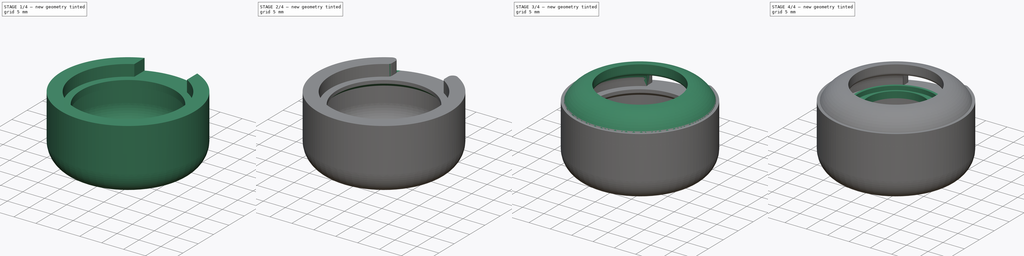
[diagram: build sequence overview — one tinted view per stage of 4, left to right]
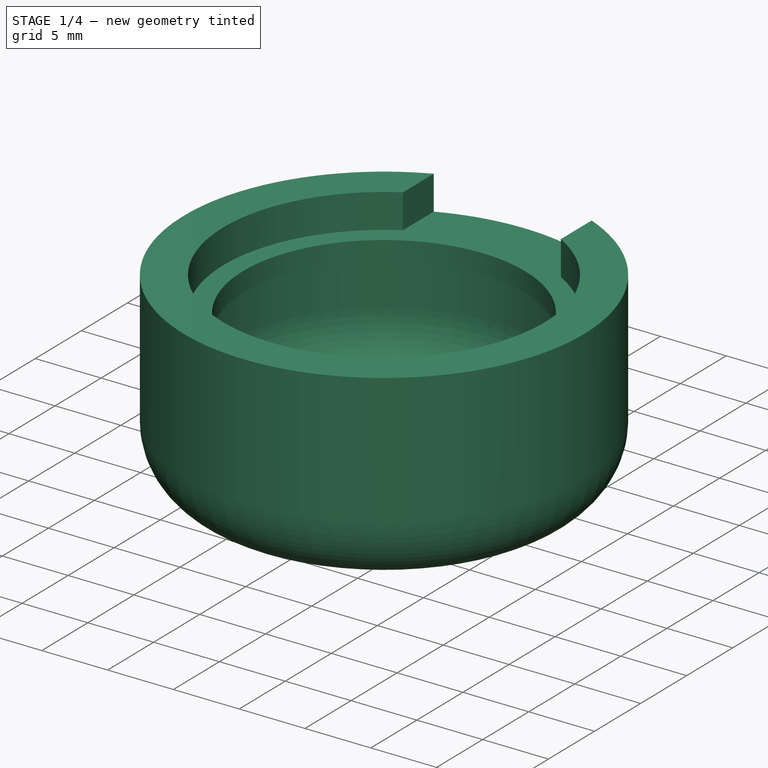
[diagram: stage 1 of 4 — iso view after this stage's code; geometry added in this stage tinted green]
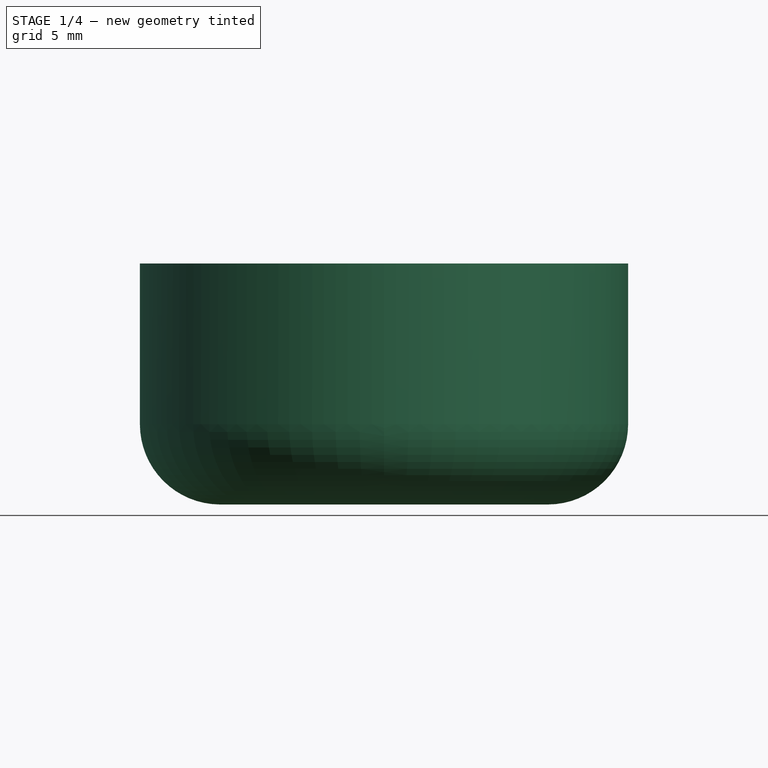
[diagram: stage 1 of 4 — front view after this stage's code; geometry added in this stage tinted green]
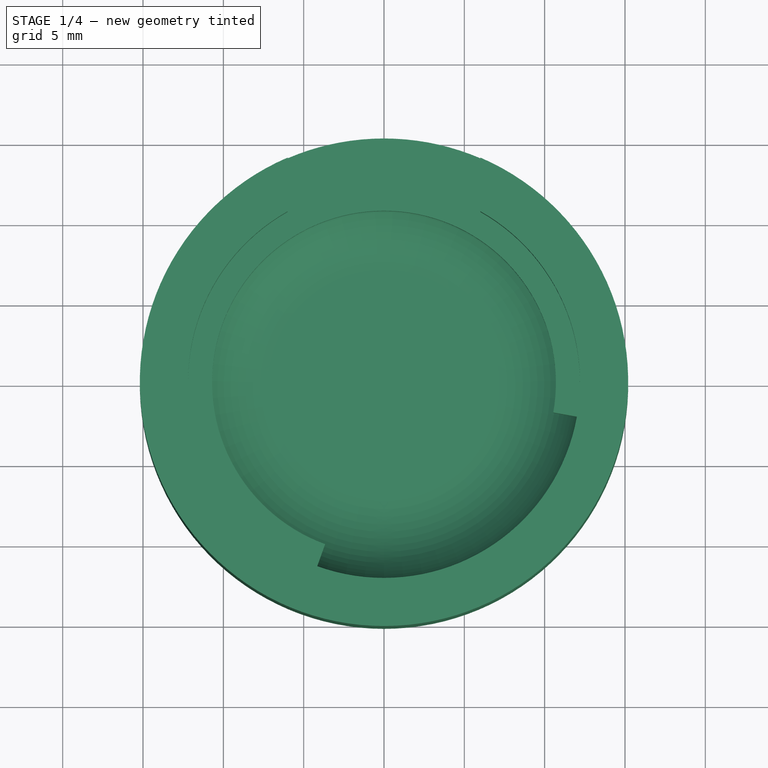
[diagram: stage 1 of 4 — top view after this stage's code; geometry added in this stage tinted green]
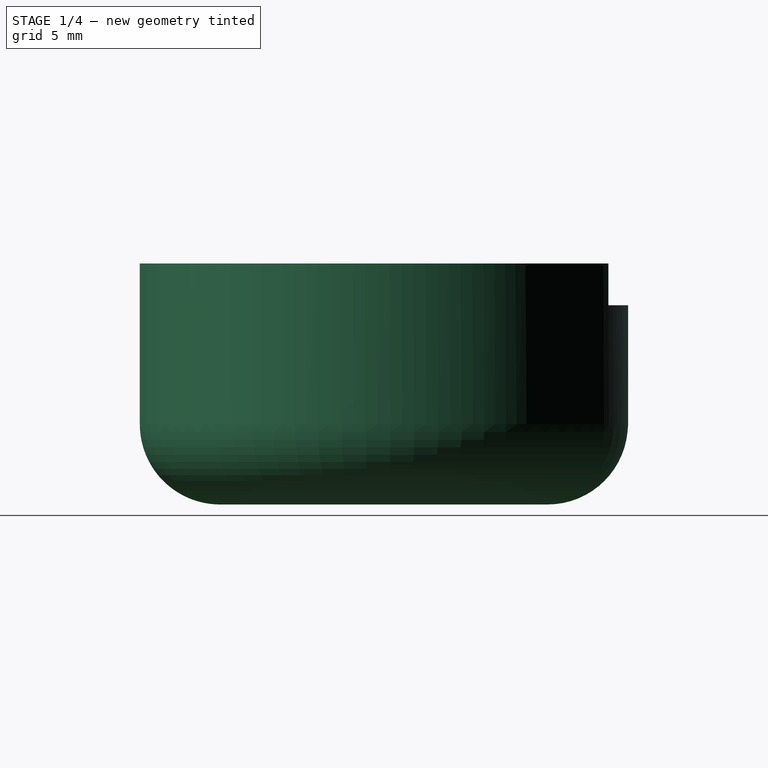
[diagram: stage 1 of 4 — right view after this stage's code; geometry added in this stage tinted green]
FCSTD DOCUMENT  (FreeCAD 0.19R22284 (Git))
Label: led-pedestal-case
License: All rights reserved
LicenseURL: http://en.wikipedia.org/wiki/All_rights_reserved
objects: Part::Feature×52, App::Part×52, Sketcher::SketchObject×12, PartDesign::Pocket×6, PartDesign::Body×3, PartDesign::Revolution×2, PartDesign::Chamfer×2, PartDesign::Plane×1, PartDesign::Fillet×1, PartDesign::ShapeBinder×1, PartDesign::Pad×1
note: 93 computed .brp shape members not serialized (recipe doc carries the construction recipe); baked Part::Feature solids carry a one-line shape summary decoded from their .brp

FEATURE [Part::Feature] Part__Feature  label="SOLID"
  shape: bbox 3.621 x 3.9 x 0.95 mm, 109 faces (baked)
FEATURE [App::Part] TSOT_23_5  label="TSOT-23-5"
  Group = -> [Part__Feature]
  Origin = -> Origin
  Placement = pos=(-4.826,4.064,1.65) rot=(0,0,1;0rad)
FEATURE [Part::Feature] Part__Feature001  label="SOLID001"
  shape: bbox 4.6 x 3.2 x 2.5 mm, 75 faces (baked)
FEATURE [App::Part] SKRPACE010
  Group = -> [Part__Feature001]
  Origin = -> Origin001
  Placement = pos=(-0.0254,-9.2456,1.65) rot=(0,0,1;3.14159rad)
FEATURE [Part::Feature] Part__Feature002  label="SOLID002"
  shape: bbox 3.494 x 3.773 x 1.55 mm, 124 faces (baked)
FEATURE [App::Part] SOT_23_6  label="SOT-23-6"
  Group = -> [Part__Feature002]
  Origin = -> Origin002
  Placement = pos=(-8.8646,-1.6764,1.65) rot=(0,0,1;3.14159rad)
FEATURE [Part::Feature] Part__Feature003  label="SOLID003"
  shape: bbox 2 x 1.2 x 0.45 mm, 26 faces (baked)
FEATURE [App::Part] R_0805_2012Metric
  Group = -> [Part__Feature003]
  Origin = -> Origin003
  Placement = pos=(7.5946,-7.62,1.65) rot=(0,0,1;3.92699rad)
FEATURE [Part::Feature] Part__Feature004  label="SOLID004"
  shape: bbox 2 x 1.25 x 1.25 mm, 28 faces (baked)
FEATURE [App::Part] C_0805_2012Metric
  Group = -> [Part__Feature004]
  Origin = -> Origin004
  Placement = pos=(4.191,-8.8646,1.65) rot=(0,0,1;1.5708rad)
FEATURE [Part::Feature] Part__Feature005  label="SOLID005"
  shape: bbox 2 x 1.25 x 1.25 mm, 28 faces (baked)
FEATURE [App::Part] C_0805_2012Metric001
  Group = -> [Part__Feature005]
  Origin = -> Origin005
  Placement = pos=(-4.4846,1.143,1.65) rot=(0,0,1;0rad)
FEATURE [Part::Feature] Part__Feature006  label="SOLID006"
  shape: bbox 2 x 1.2 x 0.45 mm, 26 faces (baked)
FEATURE [App::Part] R_0805_2012Metric001
  Group = -> [Part__Feature006]
  Origin = -> Origin006
  Placement = pos=(-3.8354,-5.334,1.65) rot=(0,0,1;0rad)
FEATURE [Part::Feature] Part__Feature007  label="SOLID007"
  shape: bbox 3.8 x 3.517 x 1.25 mm, 67 faces (baked)
FEATURE [App::Part] D_SOD_123  label="D_SOD-123"
  Group = -> [Part__Feature007]
  Origin = -> Origin007
  Placement = pos=(0.127,4.064,1.65) rot=(0,0,1;0rad)
FEATURE [Part::Feature] Part__Feature008  label="SOLID008"
  shape: bbox 3.18 x 3.679 x 1.2 mm, 76 faces (baked)
FEATURE [App::Part] SOT_23  label="SOT-23"
  Group = -> [Part__Feature008]
  Origin = -> Origin008
  Placement = pos=(6.604,6.604,1.65) rot=(0,0,1;0rad)
FEATURE [Part::Feature] Part__Feature009  label="SOLID009"
  shape: bbox 2 x 1.2 x 0.45 mm, 26 faces (baked)
FEATURE [App::Part] R_0805_2012Metric002
  Group = -> [Part__Feature009]
  Origin = -> Origin009
  Placement = pos=(-4.445,-1.016,1.65) rot=(0,0,1;0rad)
FEATURE [Part::Feature] Part__Feature010  label="SOLID010"
  shape: bbox 3.18 x 3.679 x 1.2 mm, 76 faces (baked)
FEATURE [App::Part] SOT_23001  label="SOT-024"
  Group = -> [Part__Feature010]
  Origin = -> Origin010
  Placement = pos=(-8.89,3.9624,1.65) rot=(0,0,1;0rad)
FEATURE [Part::Feature] Part__Feature011  label="SOLID011"
  shape: bbox 2 x 1.2 x 0.45 mm, 26 faces (baked)
FEATURE [App::Part] R_0805_2012Metric003
  Group = -> [Part__Feature011]
  Origin = -> Origin011
  Placement = pos=(-4.445,-3.302,1.65) rot=(0,0,1;3.14159rad)
FEATURE [Part::Feature] Part__Feature012  label="SOLID012"
  shape: bbox 2 x 1.2 x 0.45 mm, 26 faces (baked)
FEATURE [App::Part] R_0805_2012Metric004
  Group = -> [Part__Feature012]
  Origin = -> Origin012
  Placement = pos=(-5.842,7.816,1.65) rot=(0,0,1;1.5708rad)
FEATURE [Part::Feature] Part__Feature013  label="SOLID013"
  shape: bbox 6.57 x 6.453 x 1.1 mm, 156 faces (baked)
FEATURE [App::Part] TSSOP_8_4_4x3mm_P0_65mm  label="TSSOP-8_4.4x3mm_P0.65mm"
  Group = -> [Part__Feature013]
  Origin = -> Origin013
  Placement = pos=(6.604,-3.048,1.65) rot=(0,0,1;0rad)
FEATURE [Part::Feature] Part__Feature014  label="SOLID014"
  shape: bbox 2 x 1.2 x 0.45 mm, 26 faces (baked)
FEATURE [App::Part] R_0805_2012Metric005
  Group = -> [Part__Feature014]
  Origin = -> Origin014
  Placement = pos=(9.525,0.762,1.65) rot=(0,0,1;1.5708rad)
FEATURE [Part::Feature] Part__Feature015  label="SOLID015"
  shape: bbox 2 x 1.25 x 1.25 mm, 28 faces (baked)
FEATURE [App::Part] C_0805_2012Metric002
  Group = -> [Part__Feature015]
  Origin = -> Origin015
  Placement = pos=(8.6106,3.81,1.65) rot=(0,0,1;3.14159rad)
FEATURE [Part::Feature] Part__Feature016  label="SOLID016"
  shape: bbox 7.977 x 5.418 x 2.937 mm, 484 faces (baked)
FEATURE [App::Part] USB_Micro_B_Molex_47346_0001  label="USB_Micro-B_Molex_47346-0001"
  Group = -> [Part__Feature016]
  Origin = -> Origin016
  Placement = pos=(0,8.572,1.65) rot=(0,0,1;3.14159rad)
FEATURE [Part::Feature] Part__Feature017  label="SOLID017"
  shape: bbox 2 x 1.25 x 1.25 mm, 28 faces (baked)
FEATURE [App::Part] C_0805_2012Metric003
  Group = -> [Part__Feature017]
  Origin = -> Origin017
  Placement = pos=(4.7498,3.81,1.65) rot=(0,0,1;0rad)
FEATURE [Part::Feature] Part__Feature018  label="SOLID018"
  shape: bbox 3.494 x 3.773 x 1.55 mm, 124 faces (baked)
FEATURE [App::Part] SOT_23_6001  label="SOT-23-007"
  Group = -> [Part__Feature018]
  Origin = -> Origin018
  Placement = pos=(6.604,0.762,1.65) rot=(0,0,1;1.5708rad)
FEATURE [Part::Feature] Part__Feature019  label="SOLID019"
  shape: bbox 2 x 1.2 x 0.45 mm, 26 faces (baked)
FEATURE [App::Part] R_0805_2012Metric006
  Group = -> [Part__Feature019]
  Origin = -> Origin019
  Placement = pos=(0,-3.302,1.65) rot=(0,0,1;0rad)
FEATURE [Part::Feature] Part__Feature020  label="SOLID020"
  shape: bbox 2 x 1.2 x 0.45 mm, 26 faces (baked)
FEATURE [App::Part] R_0805_2012Metric007
  Group = -> [Part__Feature020]
  Origin = -> Origin020
  Placement = pos=(3.683,0.762,1.65) rot=(0,0,1;1.5708rad)
FEATURE [Part::Feature] Part__Feature021  label="SOLID021"
  shape: bbox 2 x 1.25 x 1.25 mm, 28 faces (baked)
FEATURE [App::Part] C_0805_2012Metric004
  Group = -> [Part__Feature021]
  Origin = -> Origin021
  Placement = pos=(0,-5.334,1.65) rot=(0,0,1;0rad)
FEATURE [Part::Feature] Part__Feature022  label="SOLID022"
  shape: bbox 4.9 x 11.08 x 9.8 mm, 16 faces (baked)
FEATURE [App::Part] LED_D3_0mm_FlatTop  label="LED_D3.0mm_FlatTop"
  Group = -> [Part__Feature022]
  Origin = -> Origin022
  Placement = pos=(1.27,-0.001,1.65) rot=(0,0,1;3.14159rad)
FEATURE [Part::Feature] Part__Feature023  label="SOLID023"
  shape: bbox 2 x 1.25 x 1.25 mm, 28 faces (baked)
FEATURE [App::Part] C_0805_2012Metric005
  Group = -> [Part__Feature023]
  Origin = -> Origin023
  Placement = pos=(-8.89,1.1684,1.65) rot=(0,0,1;0rad)
FEATURE [Part::Feature] Part__Feature024  label="SOLID024"
  shape: bbox 5.9 x 4.55 x 9.4 mm, 93 faces (baked)
FEATURE [App::Part] JST_PH_B2B_PH_K_1x02_P2_00mm_Vertical  label="JST_PH_B2B-PH-K_1x02_P2.00mm_Vertical"
  Group = -> [Part__Feature024]
  Origin = -> Origin024
  Placement = pos=(4.445,-5.592,-0.05) rot=(1,0,0;3.14159rad)
FEATURE [Part::Feature] Part__Feature025  label="COMPOUND"
  shape: bbox 24 x 24 x 1.6 mm, 12 faces (baked)
FEATURE [App::Part] Open_CASCADE_STEP_translator_7_4_1  label="LED Pedestal Rev1"
  Group = -> [TSOT_23_5,SKRPACE010,SOT_23_6,R_0805_2012Metric,C_0805_2012Metric,C_0805_2012Metric001,R_0805_2012Metric001,D_SOD_123,SOT_23,R_0805_2012Metric002,SOT_23001,R_0805_2012Metric003,R_0805_2012Metric004,TSSOP_8_4_4x3mm_P0_65mm,R_0805_2012Metric005,C_0805_2012Metric002,USB_Micro_B_Molex_47346_0001,C_0805_2012Metric003,SOT_23_6001,R_0805_2012Metric006,R_0805_2012Metric007,C_0805_2012Metric004,+4 more]
  Origin = -> Origin025
FEATURE [Sketcher::SketchObject] Sketch
  MapMode = 5
  Placement = pos=(0,0,0) rot=(0.57735,0.57735,0.57735;2.0944rad)
  Support = -> [YZ_Plane027]
  sketch-geometry (12):
    g0: LineSegment StartX=-12.2 StartY=2.6 StartZ=0 EndX=-15.2 EndY=2.6 EndZ=0
    g1: LineSegment StartX=-10.7 StartY=0 StartZ=0 EndX=-12.2 EndY=0 EndZ=0
    g2: LineSegment StartX=-10.2 StartY=-12.4 StartZ=0 EndX=0 EndY=-12.4 EndZ=0
    g3: LineSegment StartX=0 StartY=-12.4 StartZ=0 EndX=0 EndY=-10.4 EndZ=0
    g4: LineSegment StartX=0 StartY=-10.4 StartZ=0 EndX=-7.2 EndY=-10.4 EndZ=0
    g5: LineSegment StartX=-12.2 StartY=2.6 StartZ=0 EndX=-12.2 EndY=0 EndZ=0
    g6: LineSegment StartX=-10.7 StartY=-1.5 StartZ=0 EndX=-12.2 EndY=-1.5 EndZ=0
    g7: LineSegment StartX=-10.7 StartY=0 StartZ=0 EndX=-10.7 EndY=-1.5 EndZ=0
    g8: LineSegment StartX=-12.2 StartY=-1.5 StartZ=0 EndX=-12.2 EndY=-5.4 EndZ=0
    g9: LineSegment StartX=-15.2 StartY=2.6 StartZ=0 EndX=-15.2 EndY=-7.4 EndZ=0
    g10: ArcOfCircle CenterX=-10.2 CenterY=-7.4 CenterZ=0 NormalX=0 NormalY=0 NormalZ=1 AngleXU=0 Radius=5 StartAngle=3.14159 EndAngle=4.71239
    g11: ArcOfCircle CenterX=-7.2 CenterY=-5.4 CenterZ=0 NormalX=0 NormalY=0 NormalZ=1 AngleXU=0 Radius=5 StartAngle=3.14159 EndAngle=4.71239
  constraints (34):
    c: Horizontal(g0)
    c: DistanceX(g0,g0) = 3
    c: DistanceY(g1,g0) = 2.6
    c: PointOnObject(g2,g-2)
    c: Horizontal(g2)
    c: Coincident(g2,g3)
    c: PointOnObject(g3,g-2)
    c: Coincident(g3,g4)
    c: Horizontal(g4)
    c: DistanceY(g2,g3) = 2
    c: DistanceY(g2,g0) = 15
    c: Horizontal(g1)
    c: Coincident(g5,g0)
    c: Coincident(g5,g1)
    c: Vertical(g5)
    c: PointOnObject(g1,g-1)
    c: Distance(g-1,g5) = 12.2
    c: Horizontal(g6)
    c: Coincident(g7,g1)
    c: Coincident(g7,g6)
    c: Vertical(g7)
    c: Coincident(g8,g6)
    c: Vertical(g8)
    c: DistanceY(g6,g1) = 1.5
    c: DistanceX(g6,g6) = 1.5
    c: Coincident(g9,g0)
    c: Vertical(g9)
    c: Tangent(g10,g9) = -1.5708
    c: Tangent(g10,g2) = -1.5708
    c: Radius(g10) = 5
    c: Equal(g1,g6)
    c: Tangent(g11,g8) = -1.5708
    c: Tangent(g11,g4) = 1.5708
    c: Equal(g11,g10)
FEATURE [PartDesign::Revolution] Revolution
  Angle = 360
  Axis = (-2e-16,3e-16,1)
  Base = (0,0,0)
  Placement = pos=(0,0,0) rot=(0.57735,0.57735,0.57735;2.0944rad)
  Profile = -> Sketch
  ReferenceAxis = -> Sketch [V_Axis]
FEATURE [Sketcher::SketchObject] Sketch001
  MapMode = 5
  Support = -> [XY_Plane027]
  sketch-geometry (2):
    g0: GeomPoint X=0 Y=15.2 Z=0
    g1: LineSegment StartX=0 StartY=0 StartZ=0 EndX=0 EndY=15.2 EndZ=0
  constraints (4):
    c: PointOnObject(g0,g-2)
    c: Coincident(g1,g-1)
    c: Coincident(g1,g0)
    c: DistanceY(g1,g0) = 15.2
FEATURE [PartDesign::Plane] DatumPlane
  Length = 60
  MapMode = 1
  Placement = pos=(0,15.2,0) rot=(1,0,0;1.5708rad)
  ResizeMode = 0
  Support = -> [Sketch001]
  Width = 60
FEATURE [Sketcher::SketchObject] Sketch002
  MapMode = 5
  Placement = pos=(0,15.2,0) rot=(0,0.707107,0.707107;3.14159rad)
  Support = -> [DatumPlane]
  sketch-geometry (4):
    g0: LineSegment StartX=6 StartY=0 StartZ=0 EndX=-6 EndY=0 EndZ=0
    g1: LineSegment StartX=-6 StartY=0 StartZ=0 EndX=-6 EndY=2.6 EndZ=0
    g2: LineSegment StartX=-6 StartY=2.6 StartZ=0 EndX=6 EndY=2.6 EndZ=0
    g3: LineSegment StartX=6 StartY=2.6 StartZ=0 EndX=6 EndY=0 EndZ=0
  constraints (11):
    c: Coincident(g0,g1)
    c: Coincident(g1,g2)
    c: Coincident(g2,g3)
    c: Coincident(g3,g0)
    c: Horizontal(g2)
    c: Vertical(g1)
    c: Vertical(g3)
    c: DistanceX(g0,g0) = 12
    c: Symmetric(g0,g0,g-2)
    c: PointOnObject(g-1,g0)
    c: Distance(g3) = 2.6
FEATURE [PartDesign::Pocket] Pocket
  BaseFeature = -> Revolution
  Length = 7
  Length2 = 100
  Placement = pos=(0,0,0) rot=(0.57735,0.57735,0.57735;2.0944rad)
  Profile = -> Sketch002
  Type = 0
FEATURE [Sketcher::SketchObject] Sketch003
  ExternalGeometry = -> [Revolution]
  MapMode = 5
  Support = -> [XY_Plane027]
  sketch-geometry (6):
    g0: ArcOfCircle CenterX=0 CenterY=0 CenterZ=0 NormalX=0 NormalY=0 NormalZ=1 AngleXU=0 Radius=12.2 StartAngle=4.36332 EndAngle=6.10865
    g1: LineSegment [constr] StartX=0 StartY=0 StartZ=0 EndX=-4.17265 EndY=-11.4642 EndZ=0
    g2: LineSegment [constr] StartX=0 StartY=0 StartZ=0 EndX=12.0147 EndY=-2.11851 EndZ=0
    g3: ArcOfCircle CenterX=0 CenterY=0 CenterZ=0 NormalX=0 NormalY=0 NormalZ=1 AngleXU=0 Radius=10.7 StartAngle=4.36332 EndAngle=6.10865
    g4: LineSegment StartX=12.0147 StartY=-2.11851 StartZ=0 EndX=10.5374 EndY=-1.85804 EndZ=0
    g5: LineSegment StartX=-4.17265 StartY=-11.4642 StartZ=0 EndX=-3.65962 EndY=-10.0547 EndZ=0
  constraints (14):
    c: Coincident(g0,g-1)
    c: Coincident(g1,g0)
    c: Coincident(g1,g0)
    c: Coincident(g2,g0)
    c: Coincident(g2,g0)
    c: Angle(g-2,g1) = 2.79253
    c: Angle(g2,g-2) = 1.74533
    c: Coincident(g3,g0)
    c: Coincident(g4,g0)
    c: Coincident(g4,g3)
    c: Coincident(g5,g0)
    c: Coincident(g5,g3)
    c: Perpendicular(g3,g4)
    c: Perpendicular(g3,g5)
FEATURE [PartDesign::Pocket] Pocket001
  BaseFeature = -> Pocket
  Length = 1.5
  Length2 = 100
  Placement = pos=(0,0,0) rot=(0.57735,0.57735,0.57735;2.0944rad)
  Profile = -> Sketch003
  Type = 0
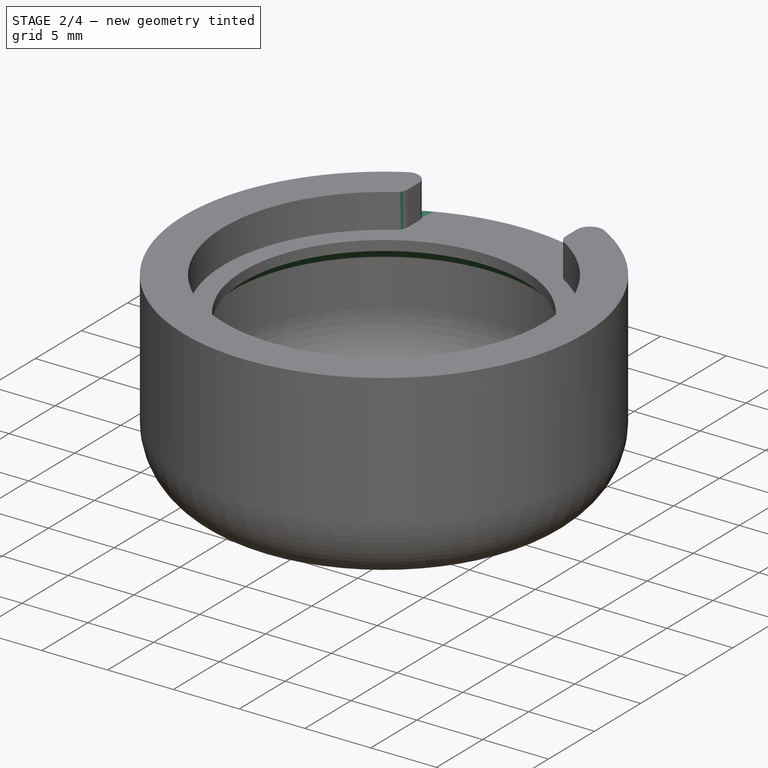
[diagram: stage 2 of 4 — iso view after this stage's code; geometry added in this stage tinted green]
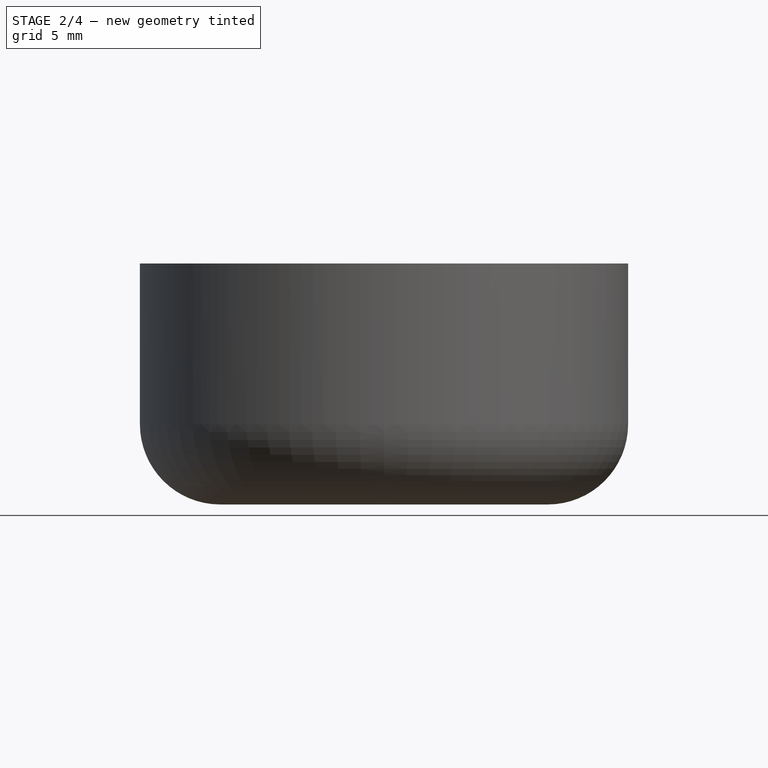
[diagram: stage 2 of 4 — front view after this stage's code; geometry added in this stage tinted green]
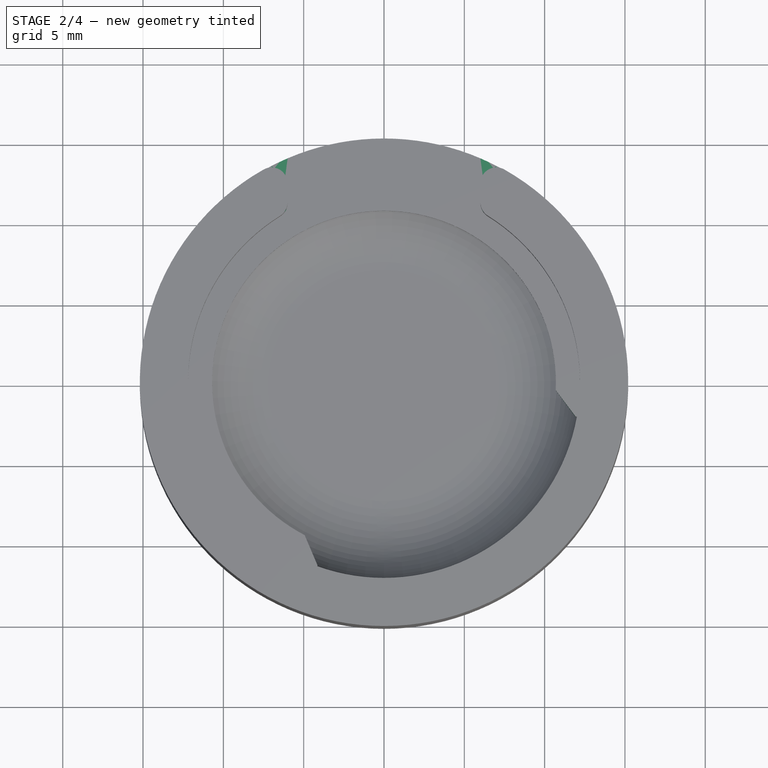
[diagram: stage 2 of 4 — top view after this stage's code; geometry added in this stage tinted green]
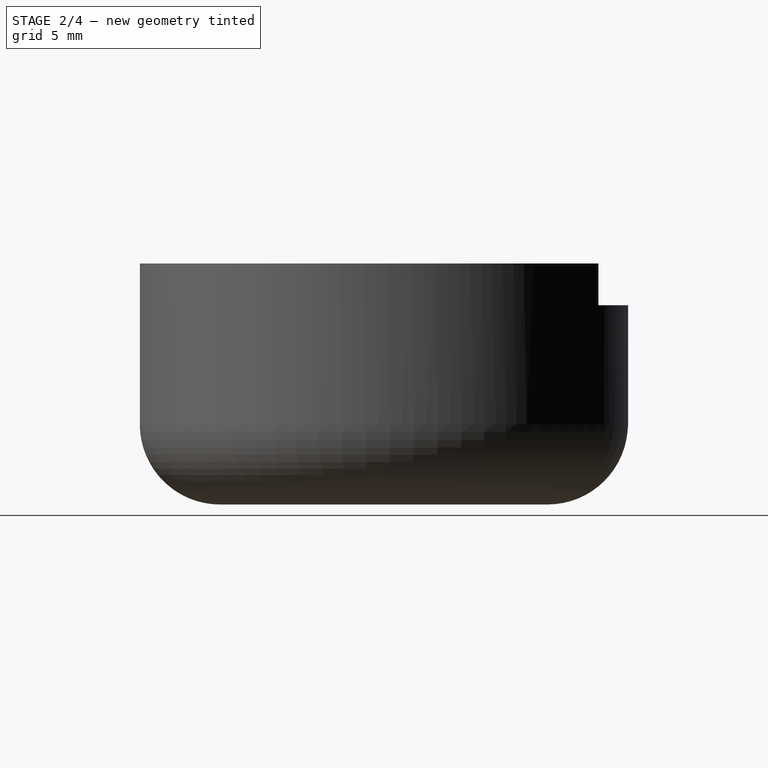
[diagram: stage 2 of 4 — right view after this stage's code; geometry added in this stage tinted green]
FEATURE [PartDesign::Fillet] Fillet
  Base = -> Pocket001 [Edge34,Edge39,Edge9,Edge29]
  BaseFeature = -> Pocket001
  Placement = pos=(0,0,0) rot=(0.57735,0.57735,0.57735;2.0944rad)
  Radius = 1
  SupportTransform = false
FEATURE [PartDesign::Chamfer] Chamfer
  Angle = 45
  Base = -> Fillet [Edge29]
  BaseFeature = -> Fillet
  ChamferType = 0
  FlipDirection = false
  Placement = pos=(0,0,0) rot=(0.57735,0.57735,0.57735;2.0944rad)
  Size = 0.75
  Size2 = 1
  SupportTransform = false
FEATURE [PartDesign::Chamfer] Chamfer001
  Angle = 45
  Base = -> Chamfer [Edge1,Edge6]
  BaseFeature = -> Chamfer
  ChamferType = 0
  FlipDirection = false
  Placement = pos=(0,0,0) rot=(0.57735,0.57735,0.57735;2.0944rad)
  Size = 1.4
  Size2 = 1
  SupportTransform = false
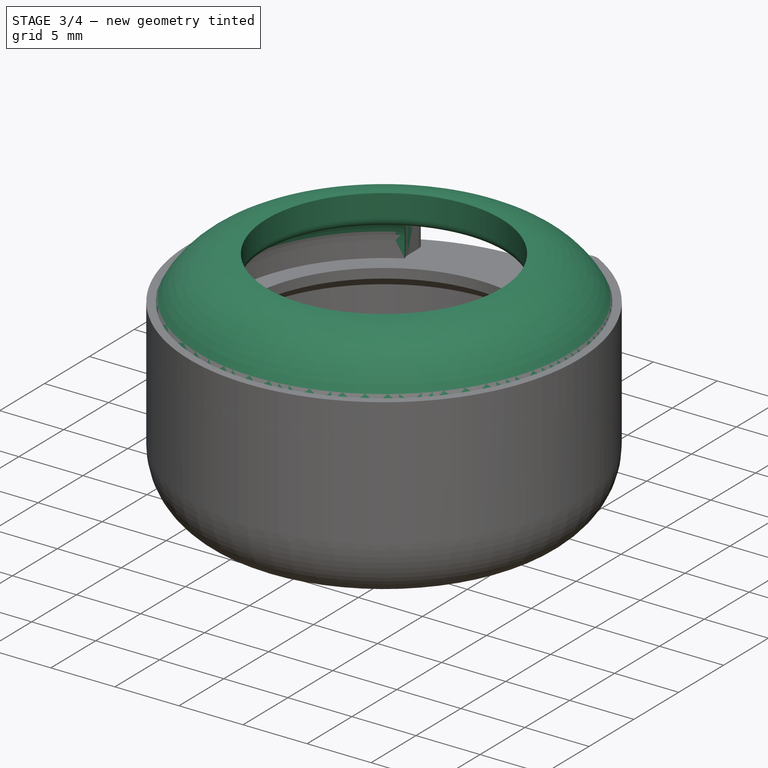
[diagram: stage 3 of 4 — iso view after this stage's code; geometry added in this stage tinted green]
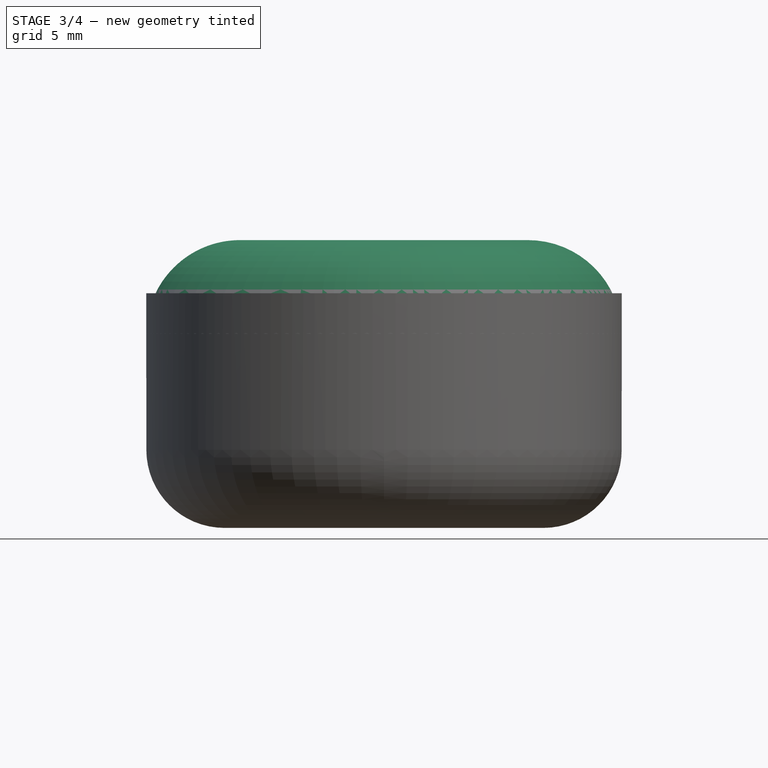
[diagram: stage 3 of 4 — front view after this stage's code; geometry added in this stage tinted green]
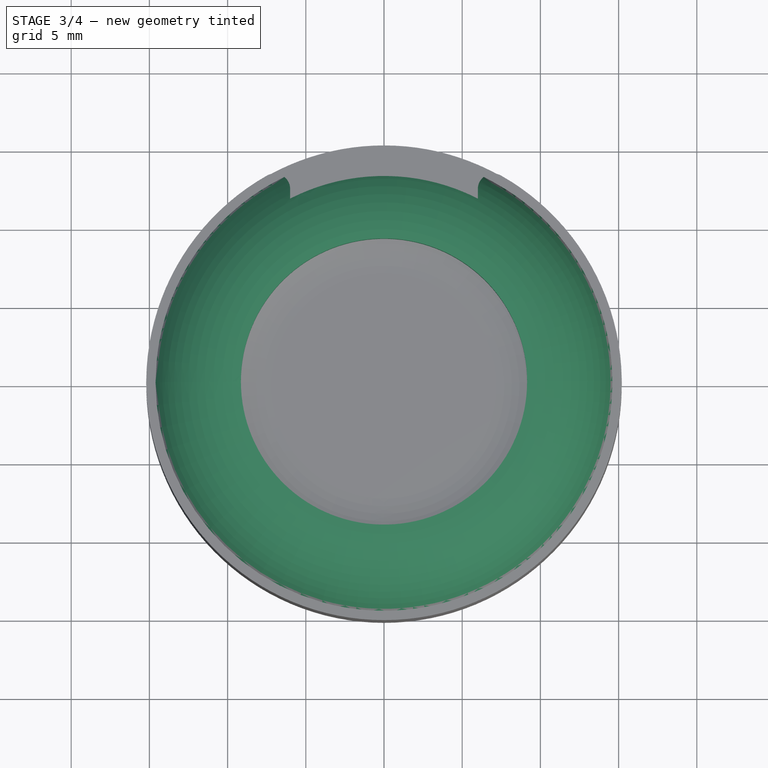
[diagram: stage 3 of 4 — top view after this stage's code; geometry added in this stage tinted green]
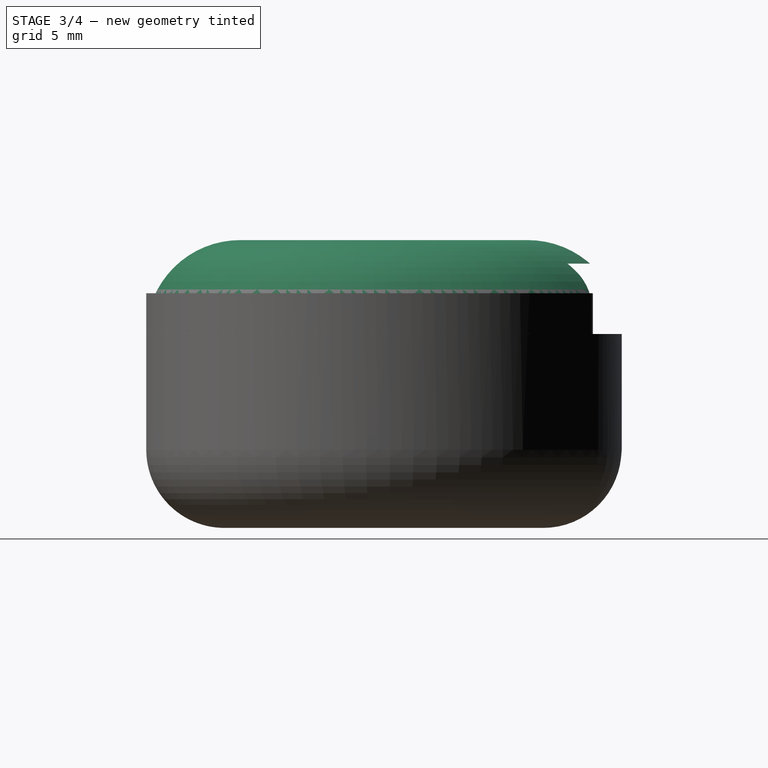
[diagram: stage 3 of 4 — right view after this stage's code; geometry added in this stage tinted green]
FEATURE [PartDesign::ShapeBinder] ShapeBinder
  Support = -> [Chamfer001]
  TraceSupport = false
FEATURE [Sketcher::SketchObject] Sketch006
  ExternalGeometry = -> [ShapeBinder]
  MapMode = 5
  Support = -> [XY_Plane028]
  sketch-geometry (2):
    g0: Circle CenterX=0 CenterY=0 CenterZ=0 NormalX=0 NormalY=0 NormalZ=1 AngleXU=0 Radius=15.2
    g1: Circle CenterX=0 CenterY=0 CenterZ=0 NormalX=0 NormalY=0 NormalZ=1 AngleXU=0 Radius=12.2
  constraints (4):
    c: Coincident(g0,g-1)
    c: Equal(g0,g-3)
    c: Coincident(g1,g-1)
    c: Tangent(g1,g-4)
FEATURE [Sketcher::SketchObject] Sketch005
  ExternalGeometry = -> [Sketch006]
  MapMode = 2
  Placement = pos=(0,0,0) rot=(1,0,0;1.5708rad)
  Support = -> [XZ_Plane028]
  sketch-geometry (7):
    g0: LineSegment StartX=-15.2 StartY=7e-16 StartZ=0 EndX=-12.2 EndY=0 EndZ=0
    g1: LineSegment StartX=-9.15 StartY=4.25 StartZ=0 EndX=-9.15 EndY=6 EndZ=0
    g2: ArcOfCircle CenterX=-9.19979 CenterY=0 CenterZ=0 NormalX=0 NormalY=0 NormalZ=1 AngleXU=0 Radius=6.00021 StartAngle=1.5625 EndAngle=3.14159
    g3: LineSegment StartX=-9.9 StartY=3.5 StartZ=0 EndX=-9.95 EndY=3.5 EndZ=0
    g4: LineSegment StartX=-12.2 StartY=1.25 StartZ=0 EndX=-12.2 EndY=0 EndZ=0
    g5: ArcOfCircle CenterX=-9.95 CenterY=1.25 CenterZ=0 NormalX=0 NormalY=0 NormalZ=1 AngleXU=0 Radius=2.25 StartAngle=1.5708 EndAngle=3.14159
    g6: ArcOfCircle CenterX=-9.9 CenterY=4.25 CenterZ=0 NormalX=0 NormalY=0 NormalZ=1 AngleXU=0 Radius=0.75 StartAngle=4.71239 EndAngle=6.28319
  constraints (18):
    c: Vertical(g1)
    c: Coincident(g2,g0)
    c: Coincident(g2,g1)
    c: Coincident(g0,g-4)
    c: DistanceX(g1,g-1) = 9.15
    c: Perpendicular(g2,g0)
    c: Horizontal(g3)
    c: Coincident(g4,g0)
    c: Vertical(g4)
    c: DistanceY(g1,g1) = 1.75
    c: Coincident(g0,g-3)
    c: Tangent(g5,g3) = -1.5708
    c: Tangent(g5,g4) = -1.5708
    c: DistanceY(g2,g3) = 3.5
    c: Tangent(g6,g3) = 1.5708
    c: Tangent(g6,g1) = -1.5708
    c: DistanceY(g3,g1) = 0.75
    c: Radius(g5) = 2.25
FEATURE [PartDesign::Revolution] Revolution001
  Angle = 360
  Axis = (0,-2e-16,1)
  Base = (0,0,0)
  Placement = pos=(0,0,0) rot=(1,0,0;1.5708rad)
  Profile = -> Sketch005
  ReferenceAxis = -> Sketch005 [V_Axis]
FEATURE [PartDesign::Body] Body002  label="Glass Dome Adapter"
  Group = -> [Sketch008,Pad,Sketch009,Pocket003]
  Origin = -> Origin029
  Placement = pos=(0,0,4) rot=(0,0,1;0rad)
  Tip = -> Pocket003
FEATURE [Sketcher::SketchObject] Sketch010
  MapMode = 5
  Placement = pos=(0,10.1911,0) rot=(-1,0,0;1.5708rad)
  sketch-geometry (6):
    g0: LineSegment StartX=-4.2 StartY=0 StartZ=0 EndX=4.2 EndY=0 EndZ=0
    g1: LineSegment StartX=4.2 StartY=0 StartZ=0 EndX=4.2 EndY=-1.5 EndZ=0
    g2: LineSegment StartX=-4.2 StartY=0 StartZ=0 EndX=-4.2 EndY=-1.5 EndZ=0
    g3: LineSegment StartX=-3.7 StartY=-2 StartZ=0 EndX=3.7 EndY=-2 EndZ=0
    g4: ArcOfCircle CenterX=3.7 CenterY=-1.5 CenterZ=0 NormalX=0 NormalY=0 NormalZ=1 AngleXU=0 Radius=0.5 StartAngle=4.71239 EndAngle=6.28319
    g5: ArcOfCircle CenterX=-3.7 CenterY=-1.5 CenterZ=0 NormalX=0 NormalY=0 NormalZ=1 AngleXU=0 Radius=0.5 StartAngle=3.14159 EndAngle=4.71239
  constraints (15):
    c: PointOnObject(g0,g-1)
    c: Coincident(g1,g0)
    c: Vertical(g1)
    c: Coincident(g2,g0)
    c: Vertical(g2)
    c: Horizontal(g3)
    c: Tangent(g5,g2) = -1.5708
    c: Tangent(g5,g3) = -1.5708
    c: Tangent(g4,g3) = -1.5708
    c: Tangent(g4,g1) = 1.5708
    c: Equal(g2,g1)
    c: Symmetric(g0,g0,g-1)
    c: Distance(g-1,g3) = 2
    c: DistanceX(g0,g-1) = 4.2
    c: Radius(g4) = 0.5
FEATURE [PartDesign::Pocket] Pocket005
  BaseFeature = -> Revolution001
  Length = 4.5
  Length2 = 100
  Placement = pos=(0,0,0) rot=(1,0,0;1.5708rad)
  Profile = -> Sketch007
  Reversed = true
  Type = 0
FEATURE [PartDesign::Body] Body
  Group = -> [Sketch005,Sketch006,ShapeBinder,Revolution001,Sketch007,Sketch010,Pocket005,Sketch011,Pocket006]
  Origin = -> Origin028
  Placement = pos=(0,0,3) rot=(0,0,1;0rad)
  Tip = -> Pocket006
FEATURE [Sketcher::SketchObject] Sketch013
  Placement = pos=(0,0,2.6) rot=(0,0,1;0rad)
  sketch-geometry (8):
    g0: LineSegment [constr] StartX=0 StartY=0 StartZ=0 EndX=9.54594 EndY=9.54594 EndZ=0
    g1: LineSegment [constr] StartX=0 StartY=0 StartZ=0 EndX=9.54594 EndY=-9.54594 EndZ=0
    g2: LineSegment [constr] StartX=0 StartY=0 StartZ=0 EndX=-9.54594 EndY=-9.54594 EndZ=0
    g3: LineSegment [constr] StartX=0 StartY=0 StartZ=0 EndX=-9.54594 EndY=9.54594 EndZ=0
    g4: Circle CenterX=9.54594 CenterY=9.54594 CenterZ=0 NormalX=0 NormalY=0 NormalZ=1 AngleXU=0 Radius=1
    g5: Circle CenterX=-9.54594 CenterY=9.54594 CenterZ=0 NormalX=0 NormalY=0 NormalZ=1 AngleXU=0 Radius=1
    g6: Circle CenterX=-9.54594 CenterY=-9.54594 CenterZ=0 NormalX=0 NormalY=0 NormalZ=1 AngleXU=0 Radius=1
    g7: Circle CenterX=9.54594 CenterY=-9.54594 CenterZ=0 NormalX=0 NormalY=0 NormalZ=1 AngleXU=0 Radius=1
  constraints (20):
    c: Coincident(g0,g-1)
    c: Coincident(g1,g-1)
    c: Coincident(g2,g-1)
    c: Coincident(g3,g-1)
    c: Coincident(g4,g0)
    c: Coincident(g5,g3)
    c: Coincident(g6,g2)
    c: Coincident(g7,g1)
    c: Equal(g3,g0)
    c: Equal(g0,g1)
    c: Equal(g1,g2)
    c: Distance(g3) = 13.5
    c: Angle(g-1,g0) = 0.785398
    c: Perpendicular(g3,g0)
    c: Perpendicular(g2,g3)
    c: Perpendicular(g1,g2)
    c: Equal(g5,g4)
    c: Equal(g4,g7)
    c: Equal(g7,g6)
    c: Radius(g5) = 1
FEATURE [PartDesign::Pocket] Pocket007
  BaseFeature = -> Chamfer001
  Length = 2
  Length2 = 100
  Placement = pos=(0,0,0) rot=(0.57735,0.57735,0.57735;2.0944rad)
  Profile = -> Sketch013
  Type = 0
FEATURE [PartDesign::Body] Body001  label="Base"
  Group = -> [Sketch,Revolution,Sketch001,DatumPlane,Sketch002,Pocket,Sketch003,Pocket001,Fillet,Chamfer,Chamfer001,Sketch013,Pocket007]
  Origin = -> Origin027
  Tip = -> Pocket007
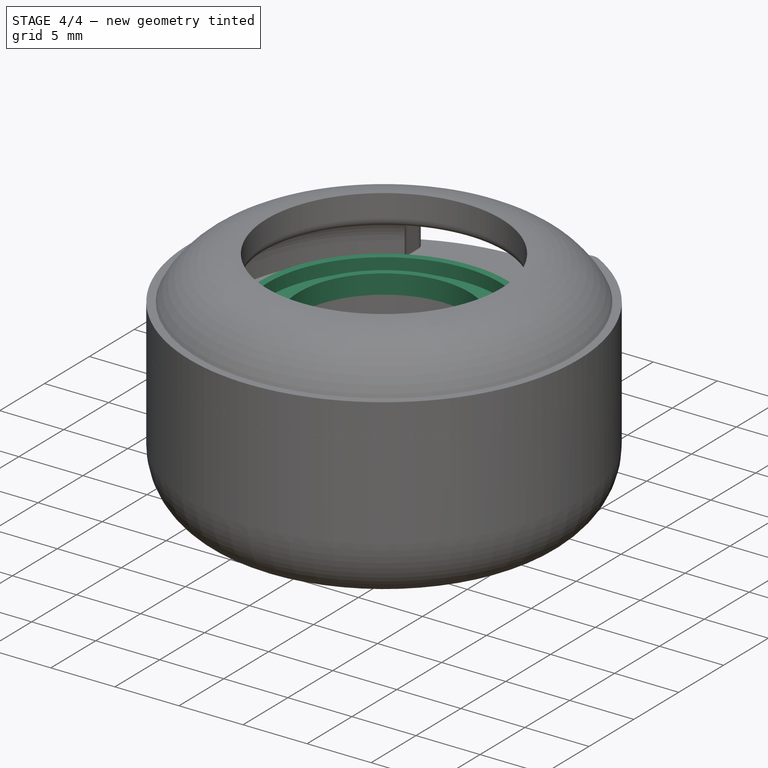
[diagram: stage 4 of 4 — iso view after this stage's code; geometry added in this stage tinted green]
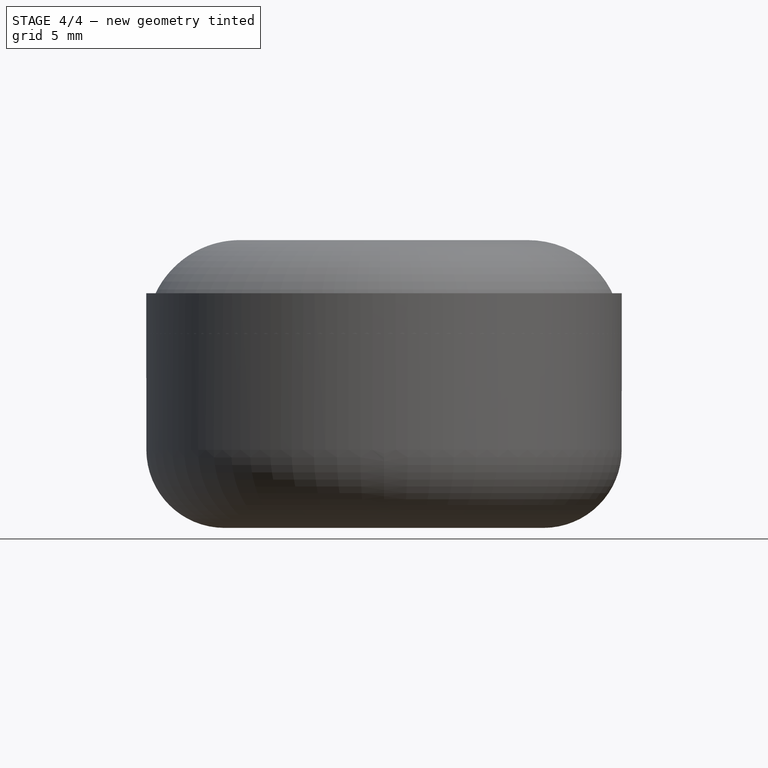
[diagram: stage 4 of 4 — front view after this stage's code; geometry added in this stage tinted green]
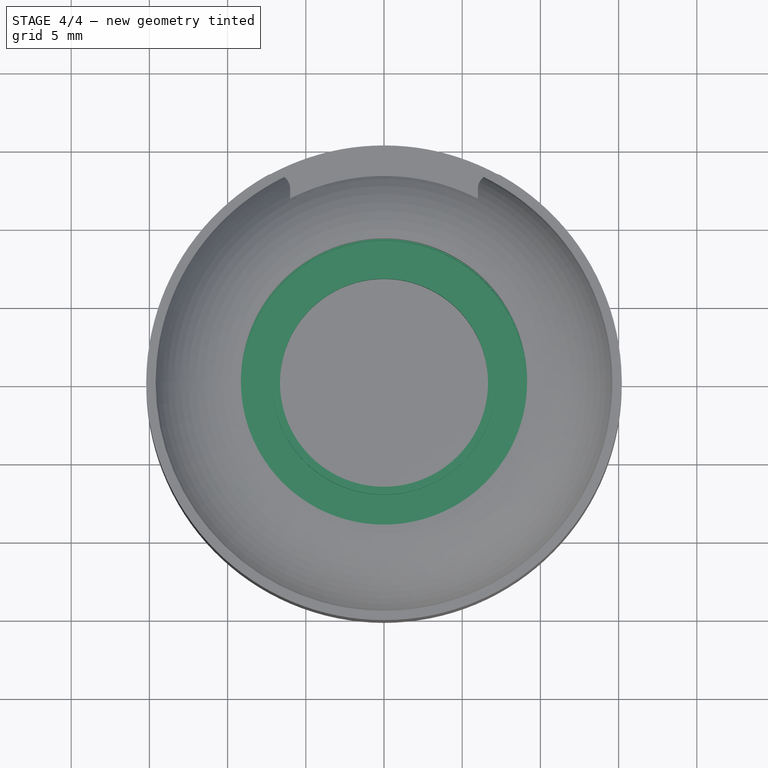
[diagram: stage 4 of 4 — top view after this stage's code; geometry added in this stage tinted green]
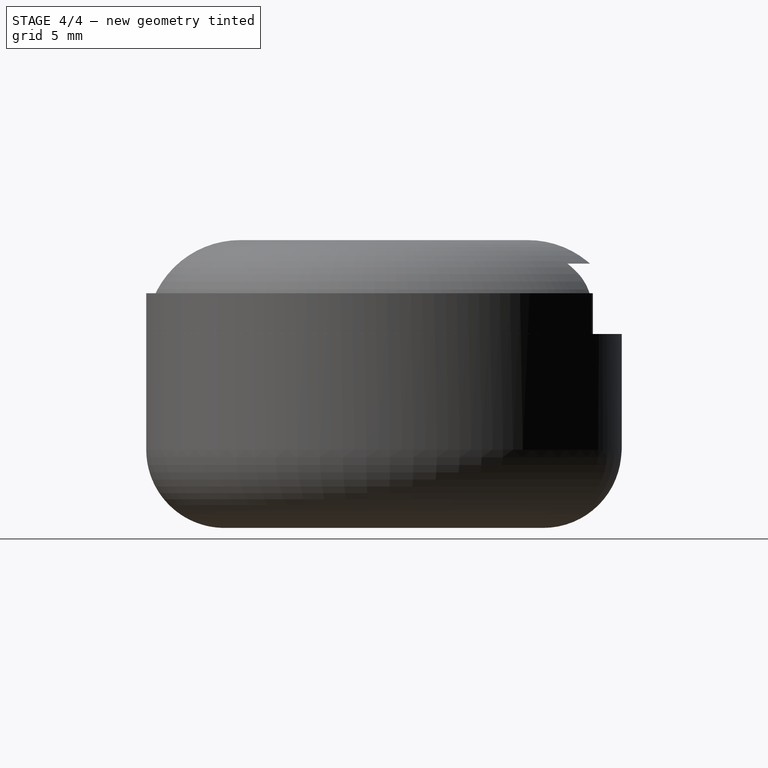
[diagram: stage 4 of 4 — right view after this stage's code; geometry added in this stage tinted green]
FEATURE [Sketcher::SketchObject] Sketch007
  ExternalGeometry = -> [ShapeBinder]
  MapMode = 5
  Support = -> [XY_Plane028]
  sketch-geometry (8):
    g0: LineSegment StartX=-5 StartY=10.1911 StartZ=0 EndX=5 EndY=10.1911 EndZ=0
    g1: LineSegment StartX=-6 StartY=12.3548 StartZ=0 EndX=-6 EndY=11.1911 EndZ=0
    g2: LineSegment StartX=6 StartY=12.3548 StartZ=0 EndX=6 EndY=11.1911 EndZ=0
    g3: ArcOfCircle CenterX=0 CenterY=0 CenterZ=0 NormalX=0 NormalY=0 NormalZ=1 AngleXU=0 Radius=15.2 StartAngle=1.05531 EndAngle=2.08628
    g4: ArcOfCircle CenterX=5 CenterY=11.1911 CenterZ=0 NormalX=0 NormalY=0 NormalZ=1 AngleXU=0 Radius=1 StartAngle=4.71239 EndAngle=6.28319
    g5: ArcOfCircle CenterX=-5 CenterY=11.1911 CenterZ=0 NormalX=0 NormalY=0 NormalZ=1 AngleXU=0 Radius=1 StartAngle=3.14159 EndAngle=4.71239
    g6: ArcOfCircle CenterX=-7 CenterY=12.3548 CenterZ=0 NormalX=0 NormalY=0 NormalZ=1 AngleXU=0 Radius=1 StartAngle=-1.8e-15 EndAngle=2.08628
    g7: ArcOfCircle CenterX=7 CenterY=12.3548 CenterZ=0 NormalX=0 NormalY=0 NormalZ=1 AngleXU=0 Radius=1 StartAngle=1.05531 EndAngle=3.14159
  constraints (19):
    c: Horizontal(g0)
    c: DistanceX(g0,g0) = 10
    c: Coincident(g1,g-3) = -1.5708
    c: Coincident(g2,g-5)
    c: Coincident(g-6,g2)
    c: Coincident(g1,g-4)
    c: Coincident(g3,g-3)
    c: Coincident(g3,g-6)
    c: Coincident(g3,g-1)
    c: Coincident(g6,g-3)
    c: Coincident(g6,g3)
    c: Coincident(g6,g1)
    c: Coincident(g7,g-6)
    c: Coincident(g7,g3)
    c: Coincident(g7,g2)
    c: Tangent(g5,g0) = -1.5708
    c: Tangent(g5,g1) = -1.5708
    c: Tangent(g4,g0) = -1.5708
    c: Tangent(g4,g2) = 1.5708
FEATURE [Sketcher::SketchObject] Sketch008
  MapMode = 5
  Support = -> [XY_Plane029]
  expr: Constraints[2] = 19.3 / 2
  expr: Constraints[3] = 13.3 / 2
  sketch-geometry (2):
    g0: Circle CenterX=0 CenterY=0 CenterZ=0 NormalX=0 NormalY=0 NormalZ=1 AngleXU=0 Radius=6.65
    g1: Circle CenterX=0 CenterY=0 CenterZ=0 NormalX=0 NormalY=0 NormalZ=1 AngleXU=0 Radius=9.65
  constraints (4):
    c: Coincident(g0,g-1)
    c: Coincident(g1,g0)
    c: Radius(g1) = 9.65
    c: Radius(g0) = 6.65
FEATURE [PartDesign::Pad] Pad
  Length = 1.5
  Length2 = 100
  Profile = -> Sketch008
  Type = 0
FEATURE [Sketcher::SketchObject] Sketch009
  MapMode = 5
  Placement = pos=(0,0,1.5) rot=(0,0,1;0rad)
  Support = -> [Pad]
  expr: Constraints[3] = 18.2 / 2
  expr: Constraints[2] = 14.3 / 2
  sketch-geometry (2):
    g0: Circle CenterX=0 CenterY=0 CenterZ=0 NormalX=0 NormalY=0 NormalZ=1 AngleXU=0 Radius=7.15
    g1: Circle CenterX=0 CenterY=0 CenterZ=0 NormalX=0 NormalY=0 NormalZ=1 AngleXU=0 Radius=9.1
  constraints (4):
    c: Coincident(g0,g-1)
    c: Coincident(g1,g0)
    c: Radius(g0) = 7.15
    c: Radius(g1) = 9.1
FEATURE [PartDesign::Pocket] Pocket003
  BaseFeature = -> Pad
  Length = 1
  Length2 = 100
  Profile = -> Sketch009
  Type = 0
FEATURE [Part::Feature] Part__Feature026  label="SOLID025"
  shape: bbox 3.621 x 3.9 x 0.95 mm, 109 faces (baked)
FEATURE [App::Part] TSOT_23_5001  label="TSOT-23-006"
  Group = -> [Part__Feature026]
  Origin = -> Origin030
  Placement = pos=(-4.826,4.064,1.65) rot=(0,0,1;0rad)
FEATURE [Part::Feature] Part__Feature027  label="SOLID026"
  shape: bbox 4.6 x 3.2 x 2.5 mm, 75 faces (baked)
FEATURE [App::Part] SKRPACE010001
  Group = -> [Part__Feature027]
  Origin = -> Origin031
  Placement = pos=(-0.0254,-8.5344,1.65) rot=(0,0,1;3.14159rad)
FEATURE [Part::Feature] Part__Feature028  label="SOLID027"
  shape: bbox 3.494 x 3.773 x 1.55 mm, 124 faces (baked)
FEATURE [App::Part] SOT_23_6002  label="SOT-23-008"
  Group = -> [Part__Feature028]
  Origin = -> Origin032
  Placement = pos=(-8.8646,-1.6764,1.65) rot=(0,0,1;3.14159rad)
FEATURE [Part::Feature] Part__Feature029  label="SOLID028"
  shape: bbox 2 x 1.25 x 1.25 mm, 28 faces (baked)
FEATURE [App::Part] C_0805_2012Metric006
  Group = -> [Part__Feature029]
  Origin = -> Origin033
  Placement = pos=(-4.4846,1.143,1.65) rot=(0,0,1;0rad)
FEATURE [Part::Feature] Part__Feature030  label="SOLID029"
  shape: bbox 2 x 1.2 x 0.45 mm, 26 faces (baked)
FEATURE [App::Part] R_0805_2012Metric008
  Group = -> [Part__Feature030]
  Origin = -> Origin034
  Placement = pos=(-3.8354,-5.334,1.65) rot=(0,0,1;0rad)
FEATURE [Part::Feature] Part__Feature031  label="SOLID030"
  shape: bbox 3.8 x 3.517 x 1.25 mm, 67 faces (baked)
FEATURE [App::Part] D_SOD_123001  label="D_SOD-124"
  Group = -> [Part__Feature031]
  Origin = -> Origin035
  Placement = pos=(0.127,4.064,1.65) rot=(0,0,1;0rad)
FEATURE [Part::Feature] Part__Feature032  label="SOLID031"
  shape: bbox 3.18 x 3.679 x 1.2 mm, 76 faces (baked)
FEATURE [App::Part] SOT_23002  label="SOT-025"
  Group = -> [Part__Feature032]
  Origin = -> Origin036
  Placement = pos=(6.604,6.604,1.65) rot=(0,0,1;0rad)
FEATURE [Part::Feature] Part__Feature033  label="SOLID032"
  shape: bbox 2 x 1.2 x 0.45 mm, 26 faces (baked)
FEATURE [App::Part] R_0805_2012Metric009
  Group = -> [Part__Feature033]
  Origin = -> Origin037
  Placement = pos=(-4.445,-1.016,1.65) rot=(0,0,1;0rad)
FEATURE [Part::Feature] Part__Feature034  label="SOLID033"
  shape: bbox 2 x 1.2 x 0.45 mm, 26 faces (baked)
FEATURE [App::Part] R_0805_2012Metric010
  Group = -> [Part__Feature034]
  Origin = -> Origin038
  Placement = pos=(7.5946,-7.62,1.65) rot=(0,0,1;3.92699rad)
FEATURE [Part::Feature] Part__Feature035  label="SOLID034"
  shape: bbox 3.18 x 3.679 x 1.2 mm, 76 faces (baked)
FEATURE [App::Part] SOT_23003  label="SOT-026"
  Group = -> [Part__Feature035]
  Origin = -> Origin039
  Placement = pos=(-8.89,3.9624,1.65) rot=(0,0,1;0rad)
FEATURE [Part::Feature] Part__Feature036  label="SOLID035"
  shape: bbox 2 x 1.2 x 0.45 mm, 26 faces (baked)
FEATURE [App::Part] R_0805_2012Metric011
  Group = -> [Part__Feature036]
  Origin = -> Origin040
  Placement = pos=(-4.445,-3.302,1.65) rot=(0,0,1;3.14159rad)
FEATURE [Part::Feature] Part__Feature037  label="SOLID036"
  shape: bbox 2 x 1.2 x 0.45 mm, 26 faces (baked)
FEATURE [App::Part] R_0805_2012Metric012
  Group = -> [Part__Feature037]
  Origin = -> Origin041
  Placement = pos=(-5.842,7.816,1.65) rot=(0,0,1;1.5708rad)
FEATURE [Part::Feature] Part__Feature038  label="SOLID037"
  shape: bbox 6.57 x 6.453 x 1.1 mm, 156 faces (baked)
FEATURE [App::Part] TSSOP_8_4_4x3mm_P0_65mm001  label="TSSOP-8_4.4x3mm_P0.65mm001"
  Group = -> [Part__Feature038]
  Origin = -> Origin042
  Placement = pos=(6.604,-3.048,1.65) rot=(0,0,1;0rad)
FEATURE [Part::Feature] Part__Feature039  label="SOLID038"
  shape: bbox 2 x 1.2 x 0.45 mm, 26 faces (baked)
FEATURE [App::Part] R_0805_2012Metric013
  Group = -> [Part__Feature039]
  Origin = -> Origin043
  Placement = pos=(9.525,0.762,1.65) rot=(0,0,1;1.5708rad)
FEATURE [Part::Feature] Part__Feature040  label="SOLID039"
  shape: bbox 2 x 1.25 x 1.25 mm, 28 faces (baked)
FEATURE [App::Part] C_0805_2012Metric007
  Group = -> [Part__Feature040]
  Origin = -> Origin044
  Placement = pos=(8.6106,3.81,1.65) rot=(0,0,1;3.14159rad)
FEATURE [Part::Feature] Part__Feature041  label="SOLID040"
  shape: bbox 7.977 x 5.418 x 2.937 mm, 484 faces (baked)
FEATURE [App::Part] USB_Micro_B_Molex_47346_0001001  label="USB_Micro-B_Molex_47346-0002"
  Group = -> [Part__Feature041]
  Origin = -> Origin045
  Placement = pos=(0,8.572,1.65) rot=(0,0,1;3.14159rad)
FEATURE [Part::Feature] Part__Feature042  label="SOLID041"
  shape: bbox 2 x 1.25 x 1.25 mm, 28 faces (baked)
FEATURE [App::Part] C_0805_2012Metric008
  Group = -> [Part__Feature042]
  Origin = -> Origin046
  Placement = pos=(4.7498,3.81,1.65) rot=(0,0,1;0rad)
FEATURE [Part::Feature] Part__Feature043  label="SOLID042"
  shape: bbox 3.494 x 3.773 x 1.55 mm, 124 faces (baked)
FEATURE [App::Part] SOT_23_6003  label="SOT-23-009"
  Group = -> [Part__Feature043]
  Origin = -> Origin047
  Placement = pos=(6.604,0.762,1.65) rot=(0,0,1;1.5708rad)
FEATURE [Part::Feature] Part__Feature044  label="SOLID043"
  shape: bbox 2 x 1.2 x 0.45 mm, 26 faces (baked)
FEATURE [App::Part] R_0805_2012Metric014
  Group = -> [Part__Feature044]
  Origin = -> Origin048
  Placement = pos=(4.191,-8.8646,1.65) rot=(0,0,1;1.5708rad)
FEATURE [Part::Feature] Part__Feature045  label="SOLID044"
  shape: bbox 2 x 1.2 x 0.45 mm, 26 faces (baked)
FEATURE [App::Part] R_0805_2012Metric015
  Group = -> [Part__Feature045]
  Origin = -> Origin049
  Placement = pos=(0,-3.302,1.65) rot=(0,0,1;0rad)
FEATURE [Part::Feature] Part__Feature046  label="SOLID045"
  shape: bbox 2 x 1.2 x 0.45 mm, 26 faces (baked)
FEATURE [App::Part] R_0805_2012Metric016
  Group = -> [Part__Feature046]
  Origin = -> Origin050
  Placement = pos=(3.683,0.762,1.65) rot=(0,0,1;1.5708rad)
FEATURE [Part::Feature] Part__Feature047  label="SOLID046"
  shape: bbox 2 x 1.25 x 1.25 mm, 28 faces (baked)
FEATURE [App::Part] C_0805_2012Metric009
  Group = -> [Part__Feature047]
  Origin = -> Origin051
  Placement = pos=(0,-5.334,1.65) rot=(0,0,1;0rad)
FEATURE [Part::Feature] Part__Feature048  label="SOLID047"
  shape: bbox 4.9 x 11.08 x 9.8 mm, 16 faces (baked)
FEATURE [App::Part] LED_D3_0mm_FlatTop001  label="LED_D3.0mm_FlatTop001"
  Group = -> [Part__Feature048]
  Origin = -> Origin052
  Placement = pos=(1.27,-0.001,1.65) rot=(0,0,1;3.14159rad)
FEATURE [Part::Feature] Part__Feature049  label="SOLID048"
  shape: bbox 2 x 1.25 x 1.25 mm, 28 faces (baked)
FEATURE [App::Part] C_0805_2012Metric010
  Group = -> [Part__Feature049]
  Origin = -> Origin053
  Placement = pos=(-8.89,1.1684,1.65) rot=(0,0,1;0rad)
FEATURE [Part::Feature] Part__Feature050  label="SOLID049"
  shape: bbox 5.9 x 4.55 x 9.4 mm, 93 faces (baked)
FEATURE [App::Part] JST_PH_B2B_PH_K_1x02_P2_00mm_Vertical001  label="JST_PH_B2B-PH-K_1x02_P2.00mm_Vertical001"
  Group = -> [Part__Feature050]
  Origin = -> Origin054
  Placement = pos=(4.445,-5.592,-0.05) rot=(1,0,0;3.14159rad)
FEATURE [Part::Feature] Part__Feature051  label="COMPOUND001"
  shape: bbox 24 x 24 x 1.6 mm, 12 faces (baked)
FEATURE [App::Part] led_pedestal_rev2_1  label="LED Pedestal Rev2"
  Group = -> [TSOT_23_5001,SKRPACE010001,SOT_23_6002,C_0805_2012Metric006,R_0805_2012Metric008,D_SOD_123001,SOT_23002,R_0805_2012Metric009,R_0805_2012Metric010,SOT_23003,R_0805_2012Metric011,R_0805_2012Metric012,TSSOP_8_4_4x3mm_P0_65mm001,R_0805_2012Metric013,C_0805_2012Metric007,USB_Micro_B_Molex_47346_0001001,C_0805_2012Metric008,SOT_23_6003,R_0805_2012Metric014,R_0805_2012Metric015,R_0805_2012Metric016,+5 more]
  Origin = -> Origin055
FEATURE [Sketcher::SketchObject] Sketch011
  ExternalGeometry = -> [Pocket005]
  MapMode = 5
  Support = -> [XY_Plane028]
  sketch-geometry (8):
    g0: Circle CenterX=9.54594 CenterY=9.54594 CenterZ=0 NormalX=0 NormalY=0 NormalZ=1 AngleXU=0 Radius=1
    g1: Circle CenterX=-9.54594 CenterY=9.54594 CenterZ=0 NormalX=0 NormalY=0 NormalZ=1 AngleXU=0 Radius=1
    g2: Circle CenterX=9.54594 CenterY=-9.54594 CenterZ=0 NormalX=0 NormalY=0 NormalZ=1 AngleXU=0 Radius=1
    g3: Circle CenterX=-9.54594 CenterY=-9.54594 CenterZ=0 NormalX=0 NormalY=0 NormalZ=1 AngleXU=0 Radius=1
    g4: LineSegment [constr] StartX=9.54594 StartY=9.54594 StartZ=0 EndX=0 EndY=0 EndZ=0
    g5: LineSegment [constr] StartX=-9.54594 StartY=9.54594 StartZ=0 EndX=0 EndY=0 EndZ=0
    g6: LineSegment [constr] StartX=0 StartY=0 StartZ=0 EndX=-9.54594 EndY=-9.54594 EndZ=0
    g7: LineSegment [constr] StartX=0 StartY=0 StartZ=0 EndX=9.54594 EndY=-9.54594 EndZ=0
  constraints (20):
    c: Equal(g1,g0)
    c: Equal(g1,g3)
    c: Equal(g1,g2)
    c: Radius(g1) = 1
    c: Distance(g1,g-1) = 13.5
    c: Distance(g-1,g3) = 13.5
    c: Distance(g-1,g2) = 13.5
    c: Distance(g-1,g0) = 13.5
    c: Coincident(g4,g0)
    c: Coincident(g4,g-1)
    c: Coincident(g5,g1)
    c: Coincident(g5,g-1)
    c: Coincident(g6,g-1)
    c: Coincident(g6,g3)
    c: Coincident(g7,g-1)
    c: Coincident(g7,g2)
    c: Angle(g-1,g4) = 0.785398
    c: Angle(g-1,g5) = 2.35619
    c: Angle(g7,g-1) = 0.785398
    c: Angle(g6,g-1) = 2.35619
FEATURE [PartDesign::Pocket] Pocket006
  BaseFeature = -> Pocket005
  Length = 2
  Length2 = 100
  Placement = pos=(0,0,0) rot=(1,0,0;1.5708rad)
  Profile = -> Sketch011
  Reversed = true
  Type = 0
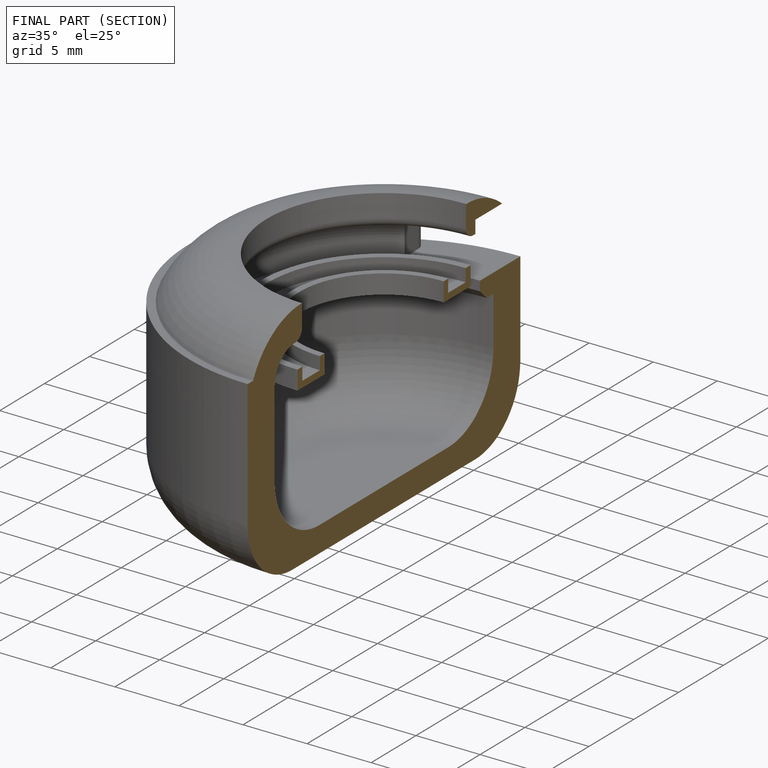
[diagram: finished part — half-section view (interior)]
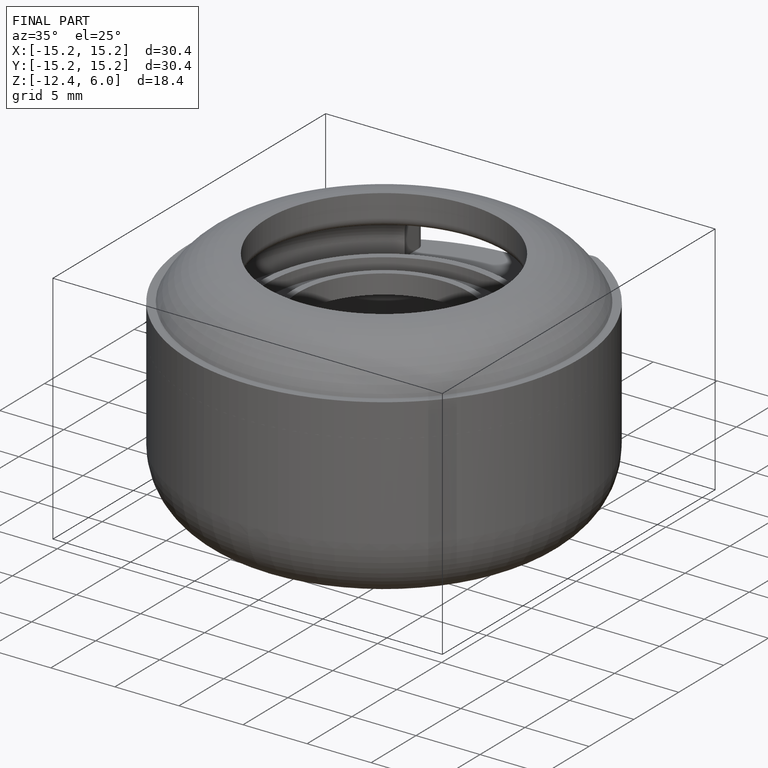
[diagram: finished part — iso view with bounding-box wireframe]
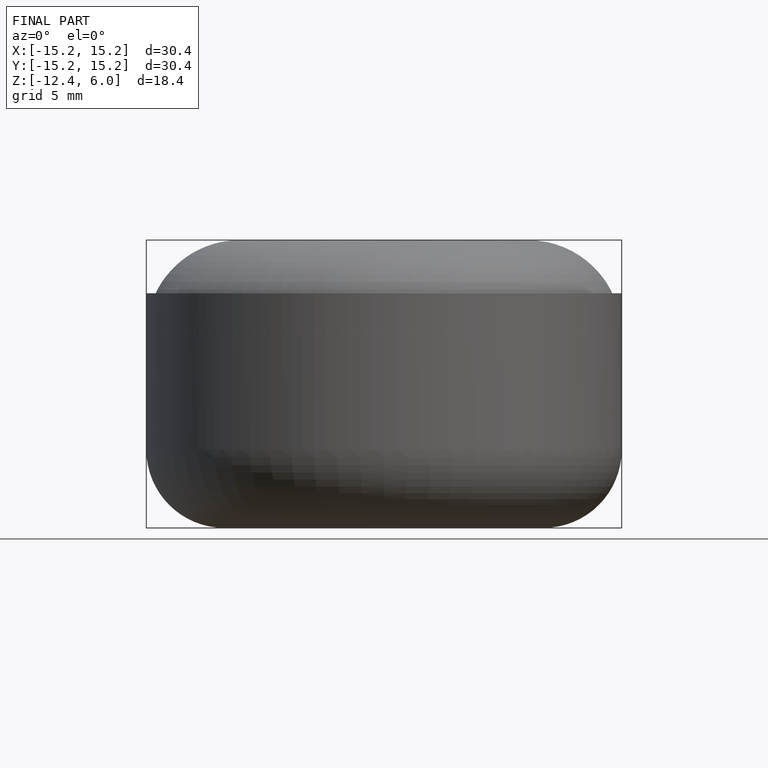
[diagram: finished part — front view with bounding-box wireframe]
